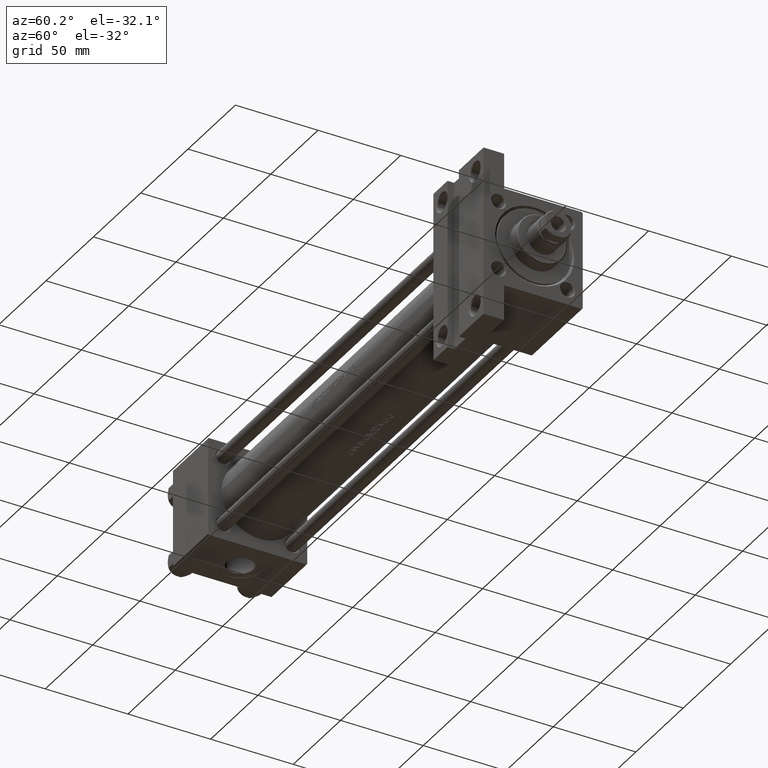
[diagram: clean part render]
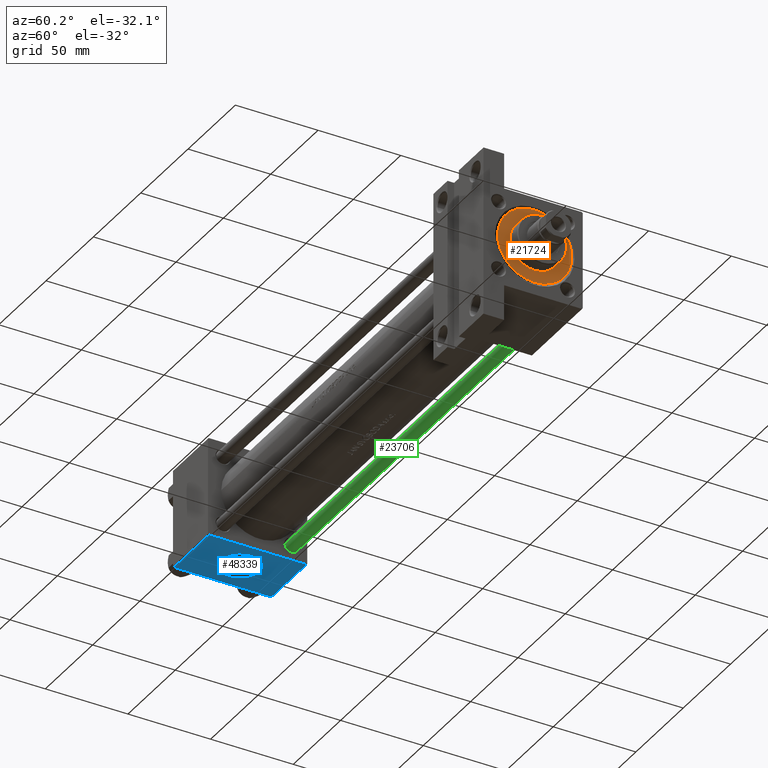
[diagram: same view with three faces highlighted in distinct colors, each labeled with its STEP entity id]
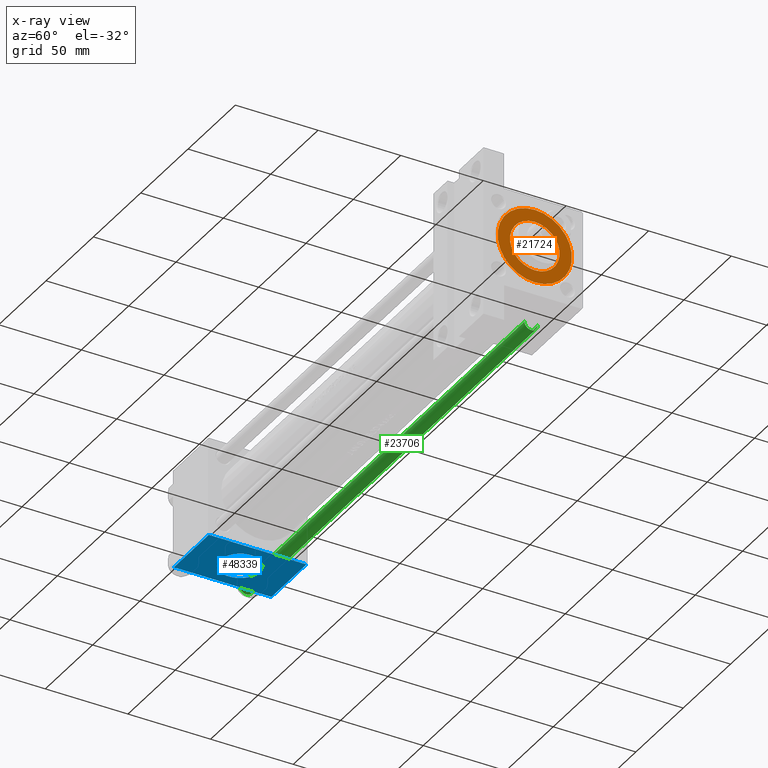
[diagram: x-ray of the same camera — body ghosted, the three highlighted faces saturated]
A machine part, auxiliary view with three faces highlighted in distinct colors.
The next image is the same camera in x-ray (body ghosted, the three faces saturated) — at least one of them is partly hidden behind the body in this view.
Their STEP definitions:

[orange] entity #21724 — the highlighted planar face has unit normal (1, 0, 0).
#124 = CIRCLE ( 'NONE', #18127, 22.50000000000000355 ) ;
#1160 = CARTESIAN_POINT ( 'NONE',  ( 15.00000000000000000, 1.836970198721029589E-15, 28.69999999999999929 ) ) ;
#2792 = VERTEX_POINT ( 'NONE', #33563 ) ;
#3412 = DIRECTION ( 'NONE',  ( 1.000000000000000000, 0.000000000000000000, 0.000000000000000000 ) ) ;
#5213 = CARTESIAN_POINT ( 'NONE',  ( 22.50000000000000355, 2.755455298081545172E-15, 28.69999999999999929 ) ) ;
#5815 = ORIENTED_EDGE ( 'NONE', *, *, #32313, .F. ) ;
#5867 = EDGE_CURVE ( 'NONE', #2792, #7094, #33780, .T. ) ;
#7094 = VERTEX_POINT ( 'NONE', #5213 ) ;
#7748 = DIRECTION ( 'NONE',  ( 0.000000000000000000, 0.000000000000000000, 1.000000000000000000 ) ) ;
#9760 = DIRECTION ( 'NONE',  ( 1.000000000000000000, 0.000000000000000000, 0.000000000000000000 ) ) ;
#10600 = DIRECTION ( 'NONE',  ( 0.000000000000000000, 0.000000000000000000, 1.000000000000000000 ) ) ;
#10772 = AXIS2_PLACEMENT_3D ( 'NONE', #12105, #7748, #27499 ) ;
#11646 = AXIS2_PLACEMENT_3D ( 'NONE', #13460, #37574, #25732 ) ;
#12097 = CARTESIAN_POINT ( 'NONE',  ( 0.000000000000000000, 0.000000000000000000, 28.69999999999999929 ) ) ;
#12105 = CARTESIAN_POINT ( 'NONE',  ( 0.000000000000000000, 0.000000000000000000, 28.69999999999999929 ) ) ;
#13460 = CARTESIAN_POINT ( 'NONE',  ( 0.000000000000000000, 0.000000000000000000, 28.69999999999999929 ) ) ;
#15387 = AXIS2_PLACEMENT_3D ( 'NONE', #31907, #20597, #20344 ) ;
#16508 = PLANE ( 'NONE',  #15387 ) ;
#17530 = VERTEX_POINT ( 'NONE', #43518 ) ;
#18127 = AXIS2_PLACEMENT_3D ( 'NONE', #30098, #10600, #3412 ) ;
#18786 = CIRCLE ( 'NONE', #48314, 15.00000000000000000 ) ;
#18934 = ORIENTED_EDGE ( 'NONE', *, *, #41289, .F. ) ;
#20098 = FACE_BOUND ( 'NONE', #42990, .T. ) ;
#20344 = DIRECTION ( 'NONE',  ( 1.000000000000000000, 0.000000000000000000, -0.000000000000000000 ) ) ;
#20597 = DIRECTION ( 'NONE',  ( 0.000000000000000000, 0.000000000000000000, 1.000000000000000000 ) ) ;
#20731 = VERTEX_POINT ( 'NONE', #1160 ) ;
#21724 = ADVANCED_FACE ( 'NONE', ( #20098, #24700 ), #16508, .T. ) ;
#23518 = ORIENTED_EDGE ( 'NONE', *, *, #37425, .T. ) ;
#24700 = FACE_OUTER_BOUND ( 'NONE', #48435, .T. ) ;
#25403 = DIRECTION ( 'NONE',  ( 0.000000000000000000, 0.000000000000000000, 1.000000000000000000 ) ) ;
#25732 = DIRECTION ( 'NONE',  ( 1.000000000000000000, 0.000000000000000000, 0.000000000000000000 ) ) ;
#27499 = DIRECTION ( 'NONE',  ( 1.000000000000000000, 0.000000000000000000, 0.000000000000000000 ) ) ;
#30098 = CARTESIAN_POINT ( 'NONE',  ( 0.000000000000000000, 0.000000000000000000, 28.69999999999999929 ) ) ;
#31907 = CARTESIAN_POINT ( 'NONE',  ( 0.000000000000000000, 0.000000000000000000, 28.69999999999999929 ) ) ;
#32313 = EDGE_CURVE ( 'NONE', #20731, #17530, #18786, .T. ) ;
#32931 = CIRCLE ( 'NONE', #10772, 15.00000000000000000 ) ;
#33563 = CARTESIAN_POINT ( 'NONE',  ( -22.50000000000000355, 0.000000000000000000, 28.69999999999999929 ) ) ;
#33780 = CIRCLE ( 'NONE', #11646, 22.50000000000000355 ) ;
#37425 = EDGE_CURVE ( 'NONE', #7094, #2792, #124, .T. ) ;
#37574 = DIRECTION ( 'NONE',  ( 0.000000000000000000, 0.000000000000000000, 1.000000000000000000 ) ) ;
#39688 = ORIENTED_EDGE ( 'NONE', *, *, #5867, .T. ) ;
#41289 = EDGE_CURVE ( 'NONE', #17530, #20731, #32931, .T. ) ;
#42990 = EDGE_LOOP ( 'NONE', ( #18934, #5815 ) ) ;
#43518 = CARTESIAN_POINT ( 'NONE',  ( -15.00000000000000000, 0.000000000000000000, 28.69999999999999929 ) ) ;
#48314 = AXIS2_PLACEMENT_3D ( 'NONE', #12097, #25403, #9760 ) ;
#48435 = EDGE_LOOP ( 'NONE', ( #39688, #23518 ) ) ;

[blue] entity #48339 — the highlighted planar face has unit normal (0, 0, -1).
#859 = CARTESIAN_POINT ( 'NONE',  ( 37.00000000000000000, 29.99999999999999289, 29.50000000000000000 ) ) ;
#1029 = PLANE ( 'NONE',  #48767 ) ;
#1153 = DIRECTION ( 'NONE',  ( 0.000000000000000000, 0.000000000000000000, 1.000000000000000000 ) ) ;
#1617 = DIRECTION ( 'NONE',  ( 1.000000000000000000, 0.000000000000000000, 0.000000000000000000 ) ) ;
#2895 = VERTEX_POINT ( 'NONE', #24006 ) ;
#3057 = AXIS2_PLACEMENT_3D ( 'NONE', #40756, #5575, #17127 ) ;
#3418 = VERTEX_POINT ( 'NONE', #8177 ) ;
#3995 = LINE ( 'NONE', #31199, #29124 ) ;
#4678 = VERTEX_POINT ( 'NONE', #12751 ) ;
#4870 = EDGE_CURVE ( 'NONE', #24179, #2895, #44493, .T. ) ;
#5575 = DIRECTION ( 'NONE',  ( 0.000000000000000000, 1.000000000000000000, 0.000000000000000000 ) ) ;
#5593 = AXIS2_PLACEMENT_3D ( 'NONE', #20384, #8329, #1153 ) ;
#7501 = VECTOR ( 'NONE', #1617, 1000.000000000000000 ) ;
#8177 = CARTESIAN_POINT ( 'NONE',  ( 0.000000000000000000, 29.99999999999999289, -29.50000000000000000 ) ) ;
#8329 = DIRECTION ( 'NONE',  ( 0.000000000000000000, 1.000000000000000000, 0.000000000000000000 ) ) ;
#12472 = CARTESIAN_POINT ( 'NONE',  ( 37.00000000000000000, 29.99999999999999289, 30.00000000000000000 ) ) ;
#12751 = CARTESIAN_POINT ( 'NONE',  ( 18.50000000000000000, 29.99999999999999289, 12.00000000000000178 ) ) ;
#13329 = FACE_OUTER_BOUND ( 'NONE', #15181, .T. ) ;
#13583 = CARTESIAN_POINT ( 'NONE',  ( 37.00000000000000000, 29.99999999999999289, 30.00000000000000000 ) ) ;
#14730 = ORIENTED_EDGE ( 'NONE', *, *, #21251, .F. ) ;
#15181 = EDGE_LOOP ( 'NONE', ( #32380, #22338, #30389, #17191 ) ) ;
#16219 = VECTOR ( 'NONE', #50727, 1000.000000000000000 ) ;
#16675 = DIRECTION ( 'NONE',  ( -0.000000000000000000, 1.000000000000000000, 0.000000000000000000 ) ) ;
#17127 = DIRECTION ( 'NONE',  ( 0.000000000000000000, 0.000000000000000000, 1.000000000000000000 ) ) ;
#17191 = ORIENTED_EDGE ( 'NONE', *, *, #4870, .T. ) ;
#20384 = CARTESIAN_POINT ( 'NONE',  ( 18.50000000000000000, 29.99999999999999289, 0.000000000000000000 ) ) ;
#21251 = EDGE_CURVE ( 'NONE', #4678, #36253, #36682, .T. ) ;
#21764 = FACE_BOUND ( 'NONE', #29992, .T. ) ;
#22250 = EDGE_CURVE ( 'NONE', #2895, #40034, #35080, .T. ) ;
#22338 = ORIENTED_EDGE ( 'NONE', *, *, #49501, .T. ) ;
#22937 = EDGE_CURVE ( 'NONE', #36253, #4678, #40846, .T. ) ;
#24006 = CARTESIAN_POINT ( 'NONE',  ( 37.00000000000000000, 29.99999999999999289, 29.50000000000000000 ) ) ;
#24179 = VERTEX_POINT ( 'NONE', #30303 ) ;
#25453 = VECTOR ( 'NONE', #26535, 1000.000000000000000 ) ;
#26535 = DIRECTION ( 'NONE',  ( 0.000000000000000000, 0.000000000000000000, -1.000000000000000000 ) ) ;
#29050 = ORIENTED_EDGE ( 'NONE', *, *, #22937, .F. ) ;
#29124 = VECTOR ( 'NONE', #43266, 1000.000000000000000 ) ;
#29992 = EDGE_LOOP ( 'NONE', ( #14730, #29050 ) ) ;
#30303 = CARTESIAN_POINT ( 'NONE',  ( 0.000000000000000000, 29.99999999999999289, 29.50000000000000000 ) ) ;
#30389 = ORIENTED_EDGE ( 'NONE', *, *, #36266, .F. ) ;
#30657 = CARTESIAN_POINT ( 'NONE',  ( 0.000000000000000000, 29.99999999999999289, 30.00000000000000000 ) ) ;
#31199 = CARTESIAN_POINT ( 'NONE',  ( 37.00000000000000000, 29.99999999999999289, -29.50000000000000000 ) ) ;
#32380 = ORIENTED_EDGE ( 'NONE', *, *, #22250, .T. ) ;
#33106 = DIRECTION ( 'NONE',  ( 0.000000000000000000, -0.000000000000000000, 1.000000000000000000 ) ) ;
#33770 = CARTESIAN_POINT ( 'NONE',  ( 18.50000000000000000, 29.99999999999999289, -12.00000000000000178 ) ) ;
#35080 = LINE ( 'NONE', #12472, #16219 ) ;
#36253 = VERTEX_POINT ( 'NONE', #33770 ) ;
#36266 = EDGE_CURVE ( 'NONE', #24179, #3418, #38130, .T. ) ;
#36682 = CIRCLE ( 'NONE', #3057, 12.00000000000000178 ) ;
#38130 = LINE ( 'NONE', #30657, #25453 ) ;
#39997 = CARTESIAN_POINT ( 'NONE',  ( 37.00000000000000000, 29.99999999999999289, -29.50000000000000000 ) ) ;
#40034 = VERTEX_POINT ( 'NONE', #39997 ) ;
#40756 = CARTESIAN_POINT ( 'NONE',  ( 18.50000000000000000, 29.99999999999999289, 0.000000000000000000 ) ) ;
#40846 = CIRCLE ( 'NONE', #5593, 12.00000000000000178 ) ;
#43266 = DIRECTION ( 'NONE',  ( -1.000000000000000000, 0.000000000000000000, 0.000000000000000000 ) ) ;
#44493 = LINE ( 'NONE', #859, #7501 ) ;
#48339 = ADVANCED_FACE ( 'NONE', ( #21764, #13329 ), #1029, .T. ) ;
#48767 = AXIS2_PLACEMENT_3D ( 'NONE', #13583, #16675, #33106 ) ;
#49501 = EDGE_CURVE ( 'NONE', #40034, #3418, #3995, .T. ) ;
#50727 = DIRECTION ( 'NONE',  ( 0.000000000000000000, 0.000000000000000000, -1.000000000000000000 ) ) ;

[green] entity #23706 — the highlighted cylindrical surface (edge-blend (fillet) strip) has radius 4 mm, axis along (-1, -0, 0).
#1537 = VERTEX_POINT ( 'NONE', #43305 ) ;
#6760 = DIRECTION ( 'NONE',  ( -0.000000000000000000, -0.000000000000000000, -1.000000000000000000 ) ) ;
#7368 = CIRCLE ( 'NONE', #48345, 4.000000000000000000 ) ;
#10155 = EDGE_CURVE ( 'NONE', #17754, #1537, #35798, .T. ) ;
#11142 = CARTESIAN_POINT ( 'NONE',  ( -4.000000000000000000, 0.000000000000000000, 301.4999999999999432 ) ) ;
#11329 = ORIENTED_EDGE ( 'NONE', *, *, #10155, .T. ) ;
#12929 = DIRECTION ( 'NONE',  ( 1.000000000000000000, 0.000000000000000000, 0.000000000000000000 ) ) ;
#13455 = VERTEX_POINT ( 'NONE', #29685 ) ;
#13826 = AXIS2_PLACEMENT_3D ( 'NONE', #18048, #6760, #49376 ) ;
#16011 = EDGE_CURVE ( 'NONE', #13455, #50765, #41437, .T. ) ;
#16013 = VECTOR ( 'NONE', #32993, 1000.000000000000000 ) ;
#16990 = DIRECTION ( 'NONE',  ( 0.000000000000000000, 0.000000000000000000, -1.000000000000000000 ) ) ;
#17754 = VERTEX_POINT ( 'NONE', #11142 ) ;
#18048 = CARTESIAN_POINT ( 'NONE',  ( 0.000000000000000000, 0.000000000000000000, 302.0000000000000000 ) ) ;
#18487 = ORIENTED_EDGE ( 'NONE', *, *, #31297, .T. ) ;
#21653 = CARTESIAN_POINT ( 'NONE',  ( 4.000000000000000000, 4.898587196589412829E-16, 302.0000000000000000 ) ) ;
#23706 = ADVANCED_FACE ( 'NONE', ( #33983 ), #45268, .T. ) ;
#24204 = CARTESIAN_POINT ( 'NONE',  ( 0.000000000000000000, 0.000000000000000000, 0.5000000000000559552 ) ) ;
#25714 = VECTOR ( 'NONE', #39143, 1000.000000000000000 ) ;
#26352 = ORIENTED_EDGE ( 'NONE', *, *, #34431, .T. ) ;
#28060 = DIRECTION ( 'NONE',  ( -0.000000000000000000, -0.000000000000000000, 1.000000000000000000 ) ) ;
#28278 = CARTESIAN_POINT ( 'NONE',  ( 0.000000000000000000, 0.000000000000000000, 301.4999999999999432 ) ) ;
#29685 = CARTESIAN_POINT ( 'NONE',  ( 4.000000000000000000, 4.898587196589412829E-16, 301.4999999999999432 ) ) ;
#29791 = EDGE_LOOP ( 'NONE', ( #46224, #26352, #11329, #18487 ) ) ;
#31297 = EDGE_CURVE ( 'NONE', #1537, #50765, #40204, .T. ) ;
#32993 = DIRECTION ( 'NONE',  ( -0.000000000000000000, -0.000000000000000000, -1.000000000000000000 ) ) ;
#33983 = FACE_OUTER_BOUND ( 'NONE', #29791, .T. ) ;
#34431 = EDGE_CURVE ( 'NONE', #13455, #17754, #7368, .T. ) ;
#35798 = LINE ( 'NONE', #42968, #25714 ) ;
#39143 = DIRECTION ( 'NONE',  ( -0.000000000000000000, -0.000000000000000000, -1.000000000000000000 ) ) ;
#40204 = CIRCLE ( 'NONE', #44294, 4.000000000000000000 ) ;
#41437 = LINE ( 'NONE', #21653, #16013 ) ;
#42968 = CARTESIAN_POINT ( 'NONE',  ( -4.000000000000000000, 0.000000000000000000, 302.0000000000000000 ) ) ;
#43305 = CARTESIAN_POINT ( 'NONE',  ( -4.000000000000000000, 0.000000000000000000, 0.5000000000000559552 ) ) ;
#44294 = AXIS2_PLACEMENT_3D ( 'NONE', #24204, #28060, #12929 ) ;
#45268 = CYLINDRICAL_SURFACE ( 'NONE', #13826, 4.000000000000000000 ) ;
#46224 = ORIENTED_EDGE ( 'NONE', *, *, #16011, .F. ) ;
#47049 = CARTESIAN_POINT ( 'NONE',  ( 4.000000000000000000, 4.898587196589412829E-16, 0.5000000000000559552 ) ) ;
#48345 = AXIS2_PLACEMENT_3D ( 'NONE', #28278, #16990, #48551 ) ;
#48551 = DIRECTION ( 'NONE',  ( 1.000000000000000000, 0.000000000000000000, 0.000000000000000000 ) ) ;
#49376 = DIRECTION ( 'NONE',  ( -1.000000000000000000, 0.000000000000000000, 0.000000000000000000 ) ) ;
#50765 = VERTEX_POINT ( 'NONE', #47049 ) ;